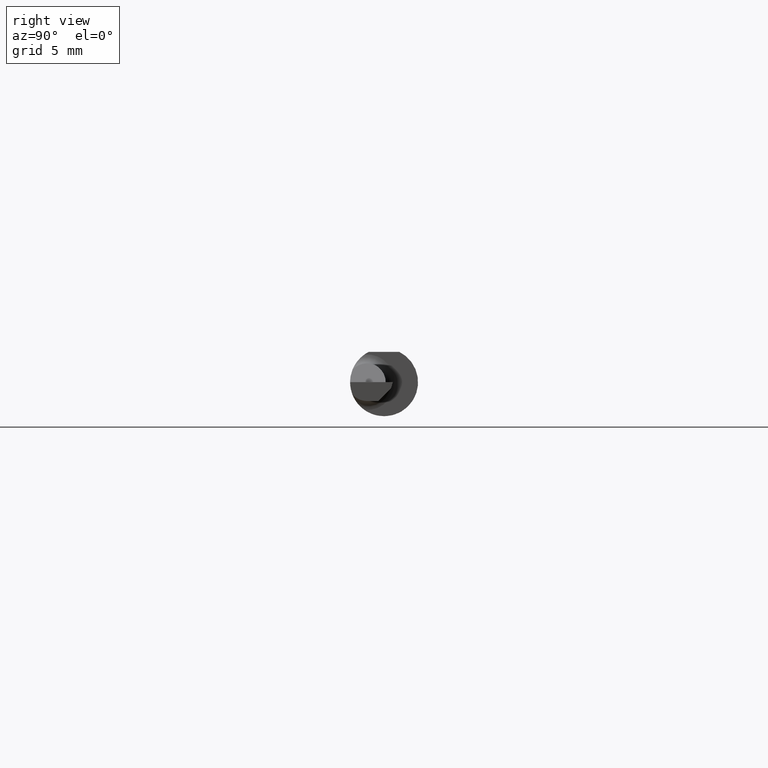
[diagram: clean part render]
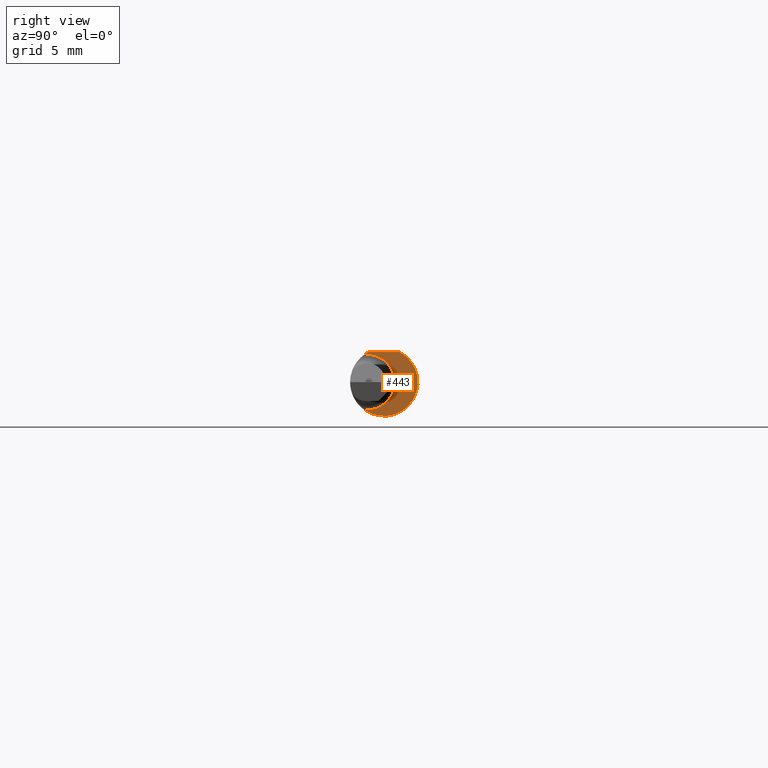
[diagram: same view with one face highlighted and labeled with its STEP entity id]
A machine part, right view. The second image highlights one B-rep face of the part: STEP entity #443.
In plain terms, the highlighted planar face has unit normal (1, -0, 0).
Its self-contained STEP definition (entity closure, byte-faithful):
#32 = ORIENTED_EDGE ( 'NONE', *, *, #420, .T. ) ;
#87 = CIRCLE ( 'NONE', #247, 0.07689999999999989899 ) ;
#89 = AXIS2_PLACEMENT_3D ( 'NONE', #203, #374, #161 ) ;
#105 = VERTEX_POINT ( 'NONE', #559 ) ;
#114 = DIRECTION ( 'NONE',  ( 0.0000000000000000000, -1.000000000000000000, 0.0000000000000000000 ) ) ;
#118 = DIRECTION ( 'NONE',  ( 0.0000000000000000000, 1.000000000000000000, 0.0000000000000000000 ) ) ;
#122 = AXIS2_PLACEMENT_3D ( 'NONE', #231, #187, #442 ) ;
#130 = VERTEX_POINT ( 'NONE', #562 ) ;
#147 = EDGE_CURVE ( 'NONE', #475, #570, #87, .T. ) ;
#158 = FACE_OUTER_BOUND ( 'NONE', #164, .T. ) ;
#161 = DIRECTION ( 'NONE',  ( 4.268512490100411279E-18, 1.000000000000000000, 0.0000000000000000000 ) ) ;
#164 = EDGE_LOOP ( 'NONE', ( #535, #32, #306, #542 ) ) ;
#169 = DIRECTION ( 'NONE',  ( 1.000000000000000000, -4.268512490100411279E-18, 0.0000000000000000000 ) ) ;
#181 = EDGE_CURVE ( 'NONE', #105, #475, #361, .T. ) ;
#187 = DIRECTION ( 'NONE',  ( 1.000000000000000000, -4.268512490100411279E-18, 0.0000000000000000000 ) ) ;
#203 = CARTESIAN_POINT ( 'NONE',  ( 1.160000000000000142, 0.02939999999999991231, 0.0000000000000000000 ) ) ;
#213 = CARTESIAN_POINT ( 'NONE',  ( 1.160000000000000142, -0.05372210526315807089, -0.07664786628533221124 ) ) ;
#220 = LINE ( 'NONE', #380, #288 ) ;
#231 = CARTESIAN_POINT ( 'NONE',  ( 1.160000000000000142, 0.0000000000000000000, 0.0000000000000000000 ) ) ;
#236 = CIRCLE ( 'NONE', #524, 0.09360000000000001652 ) ;
#247 = AXIS2_PLACEMENT_3D ( 'NONE', #344, #295, #114 ) ;
#288 = VECTOR ( 'NONE', #372, 39.37007874015748143 ) ;
#295 = DIRECTION ( 'NONE',  ( -1.000000000000000000, 4.268512490100411279E-18, -0.0000000000000000000 ) ) ;
#306 = ORIENTED_EDGE ( 'NONE', *, *, #181, .T. ) ;
#334 = PLANE ( 'NONE',  #89 ) ;
#344 = CARTESIAN_POINT ( 'NONE',  ( 1.160000000000000142, -0.04749999999999999362, 0.0000000000000000000 ) ) ;
#361 = CIRCLE ( 'NONE', #122, 0.09360000000000001652 ) ;
#372 = DIRECTION ( 'NONE',  ( -4.268512490100411279E-18, -1.000000000000000000, 1.189000693621284344E-16 ) ) ;
#374 = DIRECTION ( 'NONE',  ( 1.000000000000000000, -4.268512490100411279E-18, 0.0000000000000000000 ) ) ;
#380 = CARTESIAN_POINT ( 'NONE',  ( 1.160000000000000142, 0.1436000000000000332, 0.08359999999999999376 ) ) ;
#420 = EDGE_CURVE ( 'NONE', #130, #105, #220, .T. ) ;
#442 = DIRECTION ( 'NONE',  ( 0.0000000000000000000, 1.000000000000000000, 0.0000000000000000000 ) ) ;
#443 = ADVANCED_FACE ( 'NONE', ( #158 ), #334, .T. ) ;
#464 = CARTESIAN_POINT ( 'NONE',  ( 1.160000000000000142, -0.05372210526315807089, 0.07664786628533221124 ) ) ;
#475 = VERTEX_POINT ( 'NONE', #464 ) ;
#523 = CARTESIAN_POINT ( 'NONE',  ( 1.160000000000000142, 0.0000000000000000000, 0.0000000000000000000 ) ) ;
#524 = AXIS2_PLACEMENT_3D ( 'NONE', #523, #169, #118 ) ;
#535 = ORIENTED_EDGE ( 'NONE', *, *, #579, .T. ) ;
#542 = ORIENTED_EDGE ( 'NONE', *, *, #147, .T. ) ;
#559 = CARTESIAN_POINT ( 'NONE',  ( 1.160000000000000142, -0.04209513035969843220, 0.08360000000000000764 ) ) ;
#562 = CARTESIAN_POINT ( 'NONE',  ( 1.160000000000000142, 0.04209513035969836975, 0.08360000000000000764 ) ) ;
#570 = VERTEX_POINT ( 'NONE', #213 ) ;
#579 = EDGE_CURVE ( 'NONE', #570, #130, #236, .T. ) ;